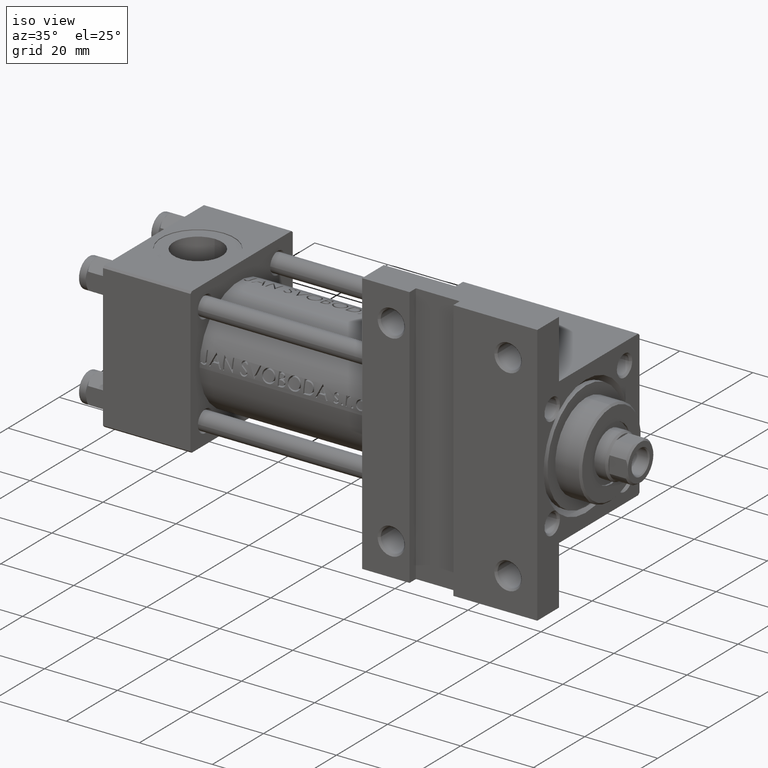
[diagram: clean part render]
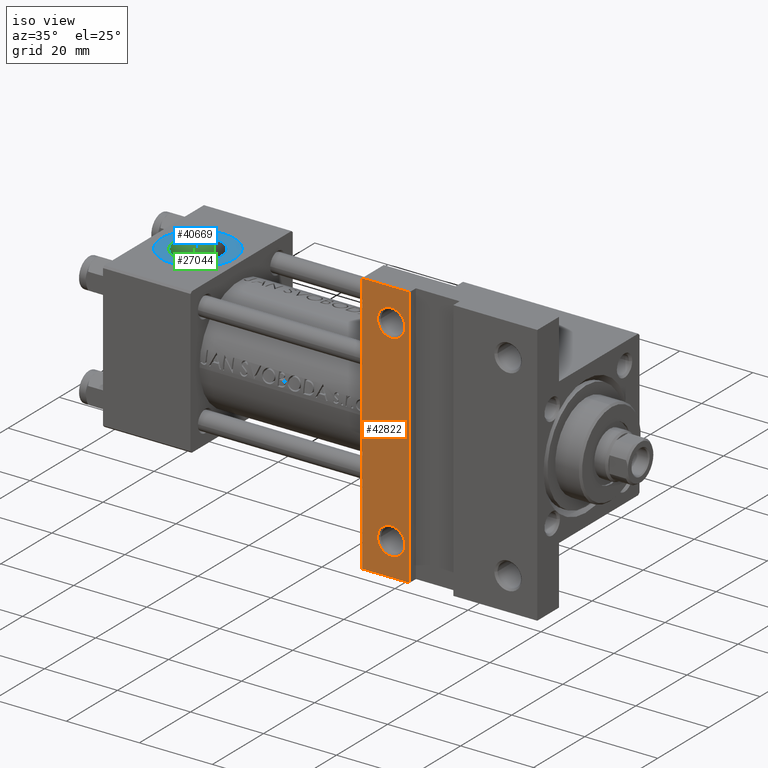
[diagram: same view with three faces highlighted in distinct colors, each labeled with its STEP entity id]
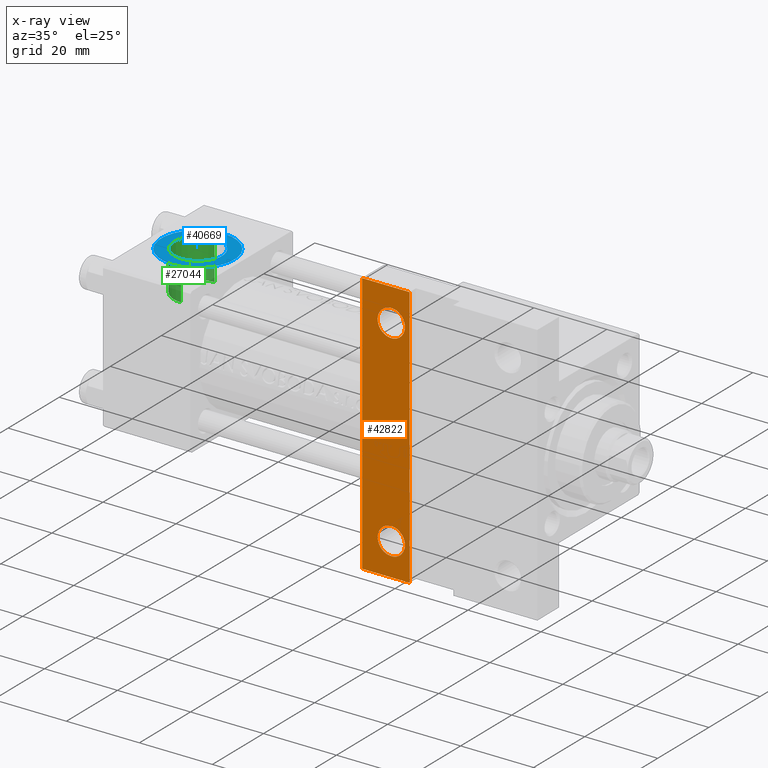
[diagram: x-ray of the same camera — body ghosted, the three highlighted faces saturated]
A machine part, iso view with three faces highlighted in distinct colors.
The next image is the same camera in x-ray (body ghosted, the three faces saturated) — at least one of them is partly hidden behind the body in this view.
Their STEP definitions:

[orange] entity #42822 — the highlighted planar face has unit normal (0, -1, 0).
#1112 = VERTEX_POINT ( 'NONE', #31444 ) ;
#1209 = DIRECTION ( 'NONE',  ( 0.000000000000000000, 1.000000000000000000, 0.000000000000000000 ) ) ;
#2199 = DIRECTION ( 'NONE',  ( -1.000000000000000000, 0.000000000000000000, 0.000000000000000000 ) ) ;
#2456 = EDGE_LOOP ( 'NONE', ( #24973, #15953, #14930, #31952 ) ) ;
#2513 = VERTEX_POINT ( 'NONE', #35330 ) ;
#2801 = CARTESIAN_POINT ( 'NONE',  ( 79.00000000000001421, 26.99999999999999289, -20.00000000000000000 ) ) ;
#2941 = VECTOR ( 'NONE', #6301, 1000.000000000000000 ) ;
#4139 = CARTESIAN_POINT ( 'NONE',  ( 83.99999999999997158, 35.99999999999995026, -20.00000000000000000 ) ) ;
#4736 = ORIENTED_EDGE ( 'NONE', *, *, #9013, .T. ) ;
#4984 = DIRECTION ( 'NONE',  ( -1.000000000000000000, 1.445602896647339656E-16, -0.000000000000000000 ) ) ;
#4998 = CARTESIAN_POINT ( 'NONE',  ( 79.00000000000001421, -26.99999999999999289, -20.00000000000000000 ) ) ;
#6057 = CARTESIAN_POINT ( 'NONE',  ( 119.0000000000000142, 19.99999999999999645, -20.00000000000000000 ) ) ;
#6090 = VERTEX_POINT ( 'NONE', #33861 ) ;
#6301 = DIRECTION ( 'NONE',  ( 0.000000000000000000, -1.000000000000000000, 0.000000000000000000 ) ) ;
#7315 = EDGE_LOOP ( 'NONE', ( #48860, #24302 ) ) ;
#8187 = DIRECTION ( 'NONE',  ( 1.000000000000000000, 1.301042606982605715E-15, 0.000000000000000000 ) ) ;
#8488 = LINE ( 'NONE', #16214, #39432 ) ;
#9013 = EDGE_CURVE ( 'NONE', #1112, #6090, #25747, .T. ) ;
#9495 = DIRECTION ( 'NONE',  ( -1.000000000000000000, 0.000000000000000000, 0.000000000000000000 ) ) ;
#10396 = VERTEX_POINT ( 'NONE', #48832 ) ;
#12192 = AXIS2_PLACEMENT_3D ( 'NONE', #26715, #33965, #38203 ) ;
#12510 = VECTOR ( 'NONE', #1209, 1000.000000000000000 ) ;
#14930 = ORIENTED_EDGE ( 'NONE', *, *, #40693, .F. ) ;
#15953 = ORIENTED_EDGE ( 'NONE', *, *, #32255, .T. ) ;
#16170 = CARTESIAN_POINT ( 'NONE',  ( 83.99999999999997158, -35.99999999999999289, -20.00000000000000000 ) ) ;
#16214 = CARTESIAN_POINT ( 'NONE',  ( 71.00000000000001421, -36.00000000000000711, -20.00000000000000000 ) ) ;
#16533 = CIRCLE ( 'NONE', #48381, 3.749950000000001893 ) ;
#17675 = EDGE_CURVE ( 'NONE', #10396, #45750, #38132, .T. ) ;
#17767 = DIRECTION ( 'NONE',  ( 0.000000000000000000, 0.000000000000000000, -1.000000000000000000 ) ) ;
#18928 = CIRCLE ( 'NONE', #35607, 3.749950000000001893 ) ;
#19424 = EDGE_CURVE ( 'NONE', #48053, #38691, #16533, .T. ) ;
#21509 = CARTESIAN_POINT ( 'NONE',  ( 71.00000000000001421, 19.99999999999999645, -20.00000000000000000 ) ) ;
#21510 = DIRECTION ( 'NONE',  ( -1.000000000000000000, 0.000000000000000000, -0.000000000000000000 ) ) ;
#22003 = DIRECTION ( 'NONE',  ( -1.000000000000000000, 0.000000000000000000, 0.000000000000000000 ) ) ;
#23473 = CARTESIAN_POINT ( 'NONE',  ( 82.74995000000001255, -26.99999999999999289, -20.00000000000000000 ) ) ;
#24140 = LINE ( 'NONE', #16170, #12510 ) ;
#24302 = ORIENTED_EDGE ( 'NONE', *, *, #19424, .T. ) ;
#24371 = EDGE_LOOP ( 'NONE', ( #45340, #4736 ) ) ;
#24973 = ORIENTED_EDGE ( 'NONE', *, *, #40310, .F. ) ;
#25747 = CIRCLE ( 'NONE', #12192, 3.749950000000001893 ) ;
#25754 = CARTESIAN_POINT ( 'NONE',  ( 71.00000000000001421, -36.00000000000000711, -20.00000000000000000 ) ) ;
#26715 = CARTESIAN_POINT ( 'NONE',  ( 79.00000000000001421, 26.99999999999999289, -20.00000000000000000 ) ) ;
#28991 = FACE_OUTER_BOUND ( 'NONE', #2456, .T. ) ;
#30429 = EDGE_CURVE ( 'NONE', #38691, #48053, #37016, .T. ) ;
#30622 = CARTESIAN_POINT ( 'NONE',  ( 70.99999999999998579, 35.99999999999995026, -20.00000000000000000 ) ) ;
#31444 = CARTESIAN_POINT ( 'NONE',  ( 82.74995000000001255, 26.99999999999999289, -20.00000000000000000 ) ) ;
#31605 = VECTOR ( 'NONE', #8187, 1000.000000000000000 ) ;
#31952 = ORIENTED_EDGE ( 'NONE', *, *, #17675, .T. ) ;
#32255 = EDGE_CURVE ( 'NONE', #2513, #48878, #8488, .T. ) ;
#32726 = PLANE ( 'NONE',  #38859 ) ;
#32863 = CARTESIAN_POINT ( 'NONE',  ( 79.00000000000001421, -26.99999999999999289, -20.00000000000000000 ) ) ;
#32978 = LINE ( 'NONE', #21509, #2941 ) ;
#33861 = CARTESIAN_POINT ( 'NONE',  ( 75.25005000000001587, 26.99999999999999289, -20.00000000000000000 ) ) ;
#33965 = DIRECTION ( 'NONE',  ( -0.000000000000000000, -0.000000000000000000, 1.000000000000000000 ) ) ;
#34517 = CARTESIAN_POINT ( 'NONE',  ( 75.25005000000001587, -26.99999999999999289, -20.00000000000000000 ) ) ;
#35330 = CARTESIAN_POINT ( 'NONE',  ( 83.99999999999997158, -35.99999999999999289, -20.00000000000000000 ) ) ;
#35607 = AXIS2_PLACEMENT_3D ( 'NONE', #2801, #40961, #22003 ) ;
#35917 = DIRECTION ( 'NONE',  ( -0.000000000000000000, -0.000000000000000000, 1.000000000000000000 ) ) ;
#37016 = CIRCLE ( 'NONE', #49002, 3.749950000000001893 ) ;
#38132 = LINE ( 'NONE', #30622, #31605 ) ;
#38203 = DIRECTION ( 'NONE',  ( -1.000000000000000000, 0.000000000000000000, 0.000000000000000000 ) ) ;
#38691 = VERTEX_POINT ( 'NONE', #34517 ) ;
#38859 = AXIS2_PLACEMENT_3D ( 'NONE', #6057, #17767, #21510 ) ;
#39432 = VECTOR ( 'NONE', #4984, 1000.000000000000000 ) ;
#40229 = FACE_BOUND ( 'NONE', #24371, .T. ) ;
#40310 = EDGE_CURVE ( 'NONE', #2513, #45750, #24140, .T. ) ;
#40693 = EDGE_CURVE ( 'NONE', #10396, #48878, #32978, .T. ) ;
#40961 = DIRECTION ( 'NONE',  ( -0.000000000000000000, -0.000000000000000000, 1.000000000000000000 ) ) ;
#41289 = EDGE_CURVE ( 'NONE', #6090, #1112, #18928, .T. ) ;
#42822 = ADVANCED_FACE ( 'NONE', ( #28991, #40229, #43729 ), #32726, .T. ) ;
#43729 = FACE_BOUND ( 'NONE', #7315, .T. ) ;
#44363 = DIRECTION ( 'NONE',  ( -0.000000000000000000, -0.000000000000000000, 1.000000000000000000 ) ) ;
#45340 = ORIENTED_EDGE ( 'NONE', *, *, #41289, .T. ) ;
#45750 = VERTEX_POINT ( 'NONE', #4139 ) ;
#48053 = VERTEX_POINT ( 'NONE', #23473 ) ;
#48381 = AXIS2_PLACEMENT_3D ( 'NONE', #4998, #35917, #9495 ) ;
#48832 = CARTESIAN_POINT ( 'NONE',  ( 70.99999999999998579, 35.99999999999995026, -20.00000000000000000 ) ) ;
#48860 = ORIENTED_EDGE ( 'NONE', *, *, #30429, .T. ) ;
#48878 = VERTEX_POINT ( 'NONE', #25754 ) ;
#49002 = AXIS2_PLACEMENT_3D ( 'NONE', #32863, #44363, #2199 ) ;

[blue] entity #40669 — the highlighted planar face has unit normal (0, -0, 1).
#336 = CARTESIAN_POINT ( 'NONE',  ( 12.00000000000000000, -19.80000000000000426, 6.579999999999996518 ) ) ;
#524 = DIRECTION ( 'NONE',  ( 0.000000000000000000, -1.000000000000000000, -8.673617379884036705E-17 ) ) ;
#1047 = CIRCLE ( 'NONE', #48849, 6.579999999999998295 ) ;
#1228 = VERTEX_POINT ( 'NONE', #38642 ) ;
#2552 = PLANE ( 'NONE',  #18890 ) ;
#3062 = DIRECTION ( 'NONE',  ( 0.000000000000000000, 8.673617379884036705E-17, -1.000000000000000000 ) ) ;
#3236 = CARTESIAN_POINT ( 'NONE',  ( 12.00000000000000000, -19.80000000000000426, -6.580000000000000071 ) ) ;
#3301 = CARTESIAN_POINT ( 'NONE',  ( 12.00000000000000000, -19.80000000000000426, -1.717376241217039812E-15 ) ) ;
#3699 = ORIENTED_EDGE ( 'NONE', *, *, #35640, .T. ) ;
#4565 = EDGE_CURVE ( 'NONE', #31908, #37988, #1047, .T. ) ;
#5106 = CARTESIAN_POINT ( 'NONE',  ( 12.00000000000000000, -19.80000000000000426, -1.717376241217039812E-15 ) ) ;
#5257 = DIRECTION ( 'NONE',  ( 0.000000000000000000, 0.000000000000000000, -1.000000000000000000 ) ) ;
#5875 = EDGE_LOOP ( 'NONE', ( #16237, #3699 ) ) ;
#14283 = FACE_BOUND ( 'NONE', #41191, .T. ) ;
#14770 = CIRCLE ( 'NONE', #28279, 9.999999999999996447 ) ;
#15029 = FACE_OUTER_BOUND ( 'NONE', #5875, .T. ) ;
#16237 = ORIENTED_EDGE ( 'NONE', *, *, #18148, .T. ) ;
#17075 = DIRECTION ( 'NONE',  ( 0.000000000000000000, 0.000000000000000000, -1.000000000000000000 ) ) ;
#17562 = CARTESIAN_POINT ( 'NONE',  ( 12.00000000000000000, -19.80000000000000426, -1.717376241217039812E-15 ) ) ;
#18021 = CARTESIAN_POINT ( 'NONE',  ( 12.00000000000000000, -19.80000000000000426, -9.999999999999998224 ) ) ;
#18148 = EDGE_CURVE ( 'NONE', #40617, #1228, #42767, .T. ) ;
#18890 = AXIS2_PLACEMENT_3D ( 'NONE', #3301, #25993, #3062 ) ;
#20214 = DIRECTION ( 'NONE',  ( 0.000000000000000000, -1.000000000000000000, -8.673617379884036705E-17 ) ) ;
#20713 = CARTESIAN_POINT ( 'NONE',  ( 12.00000000000000000, -19.80000000000000426, -1.717376241217039812E-15 ) ) ;
#22922 = AXIS2_PLACEMENT_3D ( 'NONE', #20713, #20214, #5257 ) ;
#24909 = ORIENTED_EDGE ( 'NONE', *, *, #4565, .F. ) ;
#25038 = DIRECTION ( 'NONE',  ( 0.000000000000000000, -1.000000000000000000, -8.673617379884036705E-17 ) ) ;
#25993 = DIRECTION ( 'NONE',  ( 0.000000000000000000, -1.000000000000000000, -8.673617379884036705E-17 ) ) ;
#28279 = AXIS2_PLACEMENT_3D ( 'NONE', #5106, #25038, #17075 ) ;
#30017 = AXIS2_PLACEMENT_3D ( 'NONE', #17562, #45014, #41268 ) ;
#31908 = VERTEX_POINT ( 'NONE', #336 ) ;
#35413 = CARTESIAN_POINT ( 'NONE',  ( 12.00000000000000000, -19.80000000000000426, -1.717376241217039812E-15 ) ) ;
#35640 = EDGE_CURVE ( 'NONE', #1228, #40617, #14770, .T. ) ;
#37988 = VERTEX_POINT ( 'NONE', #3236 ) ;
#38642 = CARTESIAN_POINT ( 'NONE',  ( 12.00000000000000178, -19.80000000000000426, 9.999999999999994671 ) ) ;
#38918 = DIRECTION ( 'NONE',  ( 0.000000000000000000, 0.000000000000000000, -1.000000000000000000 ) ) ;
#40617 = VERTEX_POINT ( 'NONE', #18021 ) ;
#40669 = ADVANCED_FACE ( 'NONE', ( #14283, #15029 ), #2552, .T. ) ;
#41191 = EDGE_LOOP ( 'NONE', ( #45486, #24909 ) ) ;
#41268 = DIRECTION ( 'NONE',  ( 0.000000000000000000, 0.000000000000000000, -1.000000000000000000 ) ) ;
#42244 = EDGE_CURVE ( 'NONE', #37988, #31908, #44425, .T. ) ;
#42767 = CIRCLE ( 'NONE', #30017, 9.999999999999996447 ) ;
#44425 = CIRCLE ( 'NONE', #22922, 6.579999999999998295 ) ;
#45014 = DIRECTION ( 'NONE',  ( 0.000000000000000000, -1.000000000000000000, -8.673617379884036705E-17 ) ) ;
#45486 = ORIENTED_EDGE ( 'NONE', *, *, #42244, .F. ) ;
#48849 = AXIS2_PLACEMENT_3D ( 'NONE', #35413, #524, #38918 ) ;

[green] entity #27044 — the highlighted cylindrical surface (edge-blend (fillet) strip) has radius 6.58 mm, axis along (-0, -0, 1).
#336 = CARTESIAN_POINT ( 'NONE',  ( 12.00000000000000000, -19.80000000000000426, 6.579999999999996518 ) ) ;
#524 = DIRECTION ( 'NONE',  ( 0.000000000000000000, -1.000000000000000000, -8.673617379884036705E-17 ) ) ;
#1047 = CIRCLE ( 'NONE', #48849, 6.579999999999998295 ) ;
#1300 = FACE_OUTER_BOUND ( 'NONE', #14308, .T. ) ;
#3236 = CARTESIAN_POINT ( 'NONE',  ( 12.00000000000000000, -19.80000000000000426, -6.580000000000000071 ) ) ;
#4565 = EDGE_CURVE ( 'NONE', #31908, #37988, #1047, .T. ) ;
#5454 = AXIS2_PLACEMENT_3D ( 'NONE', #40288, #5866, #25558 ) ;
#5866 = DIRECTION ( 'NONE',  ( -0.000000000000000000, 1.000000000000000000, 8.673617379884039170E-17 ) ) ;
#11132 = ORIENTED_EDGE ( 'NONE', *, *, #46915, .T. ) ;
#14308 = EDGE_LOOP ( 'NONE', ( #11132, #42848, #35332, #47757 ) ) ;
#20085 = LINE ( 'NONE', #35299, #30838 ) ;
#20987 = AXIS2_PLACEMENT_3D ( 'NONE', #28712, #31711, #28224 ) ;
#25558 = DIRECTION ( 'NONE',  ( 0.000000000000000000, 0.000000000000000000, -1.000000000000000000 ) ) ;
#26961 = CIRCLE ( 'NONE', #5454, 6.579999999999998295 ) ;
#27044 = ADVANCED_FACE ( 'NONE', ( #1300 ), #47936, .F. ) ;
#28224 = DIRECTION ( 'NONE',  ( 0.000000000000000000, 0.000000000000000000, -1.000000000000000000 ) ) ;
#28622 = DIRECTION ( 'NONE',  ( -0.000000000000000000, -1.000000000000000000, -8.673617379884036705E-17 ) ) ;
#28712 = CARTESIAN_POINT ( 'NONE',  ( 12.00000000000000000, -9.100000000000004974, -7.892991815694479182E-16 ) ) ;
#30838 = VECTOR ( 'NONE', #39548, 1000.000000000000000 ) ;
#31711 = DIRECTION ( 'NONE',  ( -0.000000000000000000, -1.000000000000000000, -8.673617379884036705E-17 ) ) ;
#31908 = VERTEX_POINT ( 'NONE', #336 ) ;
#35299 = CARTESIAN_POINT ( 'NONE',  ( 12.00000000000000000, -9.100000000000004974, -6.579999999999999183 ) ) ;
#35332 = ORIENTED_EDGE ( 'NONE', *, *, #4565, .T. ) ;
#35413 = CARTESIAN_POINT ( 'NONE',  ( 12.00000000000000000, -19.80000000000000426, -1.717376241217039812E-15 ) ) ;
#35675 = CARTESIAN_POINT ( 'NONE',  ( 12.00000000000000000, -9.039999999999977831, -6.579999999999999183 ) ) ;
#36916 = CARTESIAN_POINT ( 'NONE',  ( 12.00000000000000000, -9.039999999999977831, 6.579999999999997407 ) ) ;
#37988 = VERTEX_POINT ( 'NONE', #3236 ) ;
#38918 = DIRECTION ( 'NONE',  ( 0.000000000000000000, 0.000000000000000000, -1.000000000000000000 ) ) ;
#39548 = DIRECTION ( 'NONE',  ( -0.000000000000000000, -1.000000000000000000, -8.673617379884036705E-17 ) ) ;
#40097 = CARTESIAN_POINT ( 'NONE',  ( 12.00000000000000000, -9.100000000000004974, 6.579999999999997407 ) ) ;
#40288 = CARTESIAN_POINT ( 'NONE',  ( 12.00000000000000000, -9.039999999999977831, -7.840950111415154262E-16 ) ) ;
#41055 = VERTEX_POINT ( 'NONE', #36916 ) ;
#41585 = EDGE_CURVE ( 'NONE', #42270, #37988, #20085, .T. ) ;
#42270 = VERTEX_POINT ( 'NONE', #35675 ) ;
#42848 = ORIENTED_EDGE ( 'NONE', *, *, #47155, .T. ) ;
#44091 = LINE ( 'NONE', #40097, #45318 ) ;
#45318 = VECTOR ( 'NONE', #28622, 1000.000000000000000 ) ;
#46915 = EDGE_CURVE ( 'NONE', #42270, #41055, #26961, .T. ) ;
#47155 = EDGE_CURVE ( 'NONE', #41055, #31908, #44091, .T. ) ;
#47757 = ORIENTED_EDGE ( 'NONE', *, *, #41585, .F. ) ;
#47936 = CYLINDRICAL_SURFACE ( 'NONE', #20987, 6.579999999999998295 ) ;
#48849 = AXIS2_PLACEMENT_3D ( 'NONE', #35413, #524, #38918 ) ;